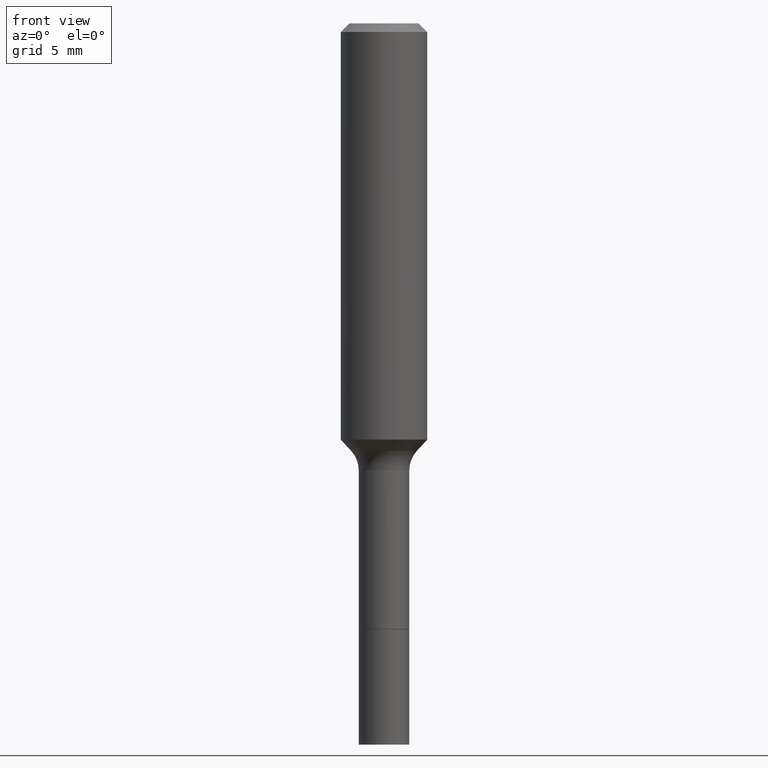
[diagram: clean part render]
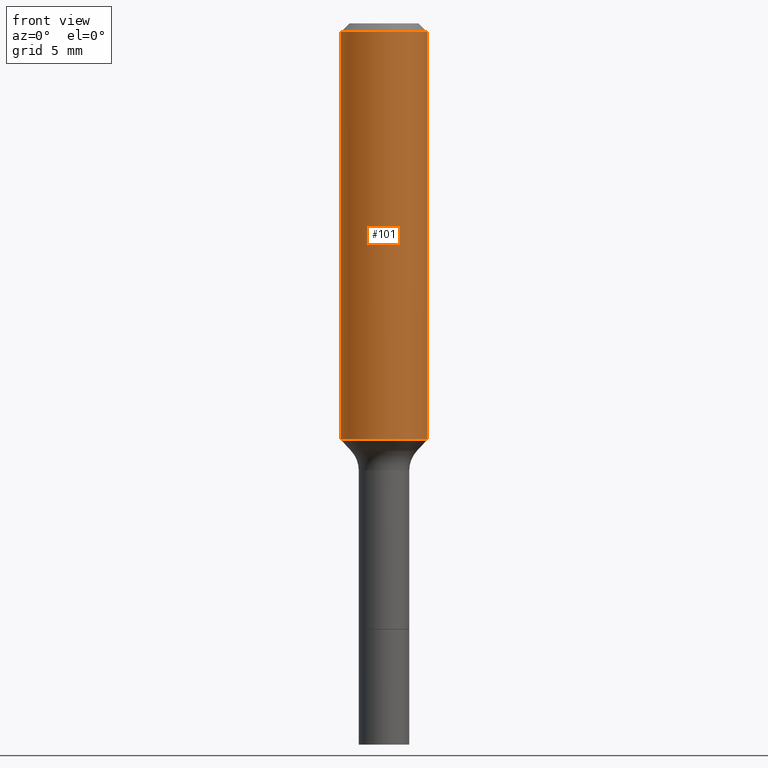
[diagram: same view with one face highlighted and labeled with its STEP entity id]
A machine part, front view. The second image highlights one B-rep face of the part: STEP entity #101.
In plain terms, the highlighted cylindrical surface (partial cylindrical patch) has radius 2.9997 mm, axis along (-0, 0, 1).
Its self-contained STEP definition (entity closure, byte-faithful):
#7 = CARTESIAN_POINT ( 'NONE',  ( 0.1180999999999999966, -9.071566814582237199E-16, -0.02362000000000014435 ) ) ;
#33 = CARTESIAN_POINT ( 'NONE',  ( 0.000000000000000000, 0.000000000000000000, 0.000000000000000000 ) ) ;
#41 = VERTEX_POINT ( 'NONE', #106 ) ;
#68 = DIRECTION ( 'NONE',  ( -2.445468806185136877E-29, 3.491481338843145188E-15, 1.000000000000000000 ) ) ;
#73 = VECTOR ( 'NONE', #514, 39.37007874015748143 ) ;
#87 = DIRECTION ( 'NONE',  ( 1.000000000000000000, -6.982962677686269077E-15, 0.000000000000000000 ) ) ;
#88 = ORIENTED_EDGE ( 'NONE', *, *, #340, .T. ) ;
#93 = DIRECTION ( 'NONE',  ( -2.445468806185136597E-29, 3.491481338843145583E-15, 1.000000000000000000 ) ) ;
#101 = ADVANCED_FACE ( 'NONE', ( #411 ), #160, .T. ) ;
#105 = AXIS2_PLACEMENT_3D ( 'NONE', #135, #93, #87 ) ;
#106 = CARTESIAN_POINT ( 'NONE',  ( -0.1181000000000001354, -3.127963074443632070E-15, -1.136226621417590010 ) ) ;
#112 = AXIS2_PLACEMENT_3D ( 'NONE', #33, #325, #278 ) ;
#130 = VERTEX_POINT ( 'NONE', #481 ) ;
#135 = CARTESIAN_POINT ( 'NONE',  ( 2.778606759433844860E-29, -3.967114045376311056E-15, -1.136226621417590010 ) ) ;
#137 = DIRECTION ( 'NONE',  ( 1.000000000000000000, -6.982962677686266711E-15, 0.000000000000000000 ) ) ;
#160 = CYLINDRICAL_SURFACE ( 'NONE', #112, 0.1181000000000000660 ) ;
#210 = CIRCLE ( 'NONE', #453, 0.1180999999999999966 ) ;
#211 = EDGE_LOOP ( 'NONE', ( #480, #349, #88, #299 ) ) ;
#213 = VERTEX_POINT ( 'NONE', #434 ) ;
#216 = CARTESIAN_POINT ( 'NONE',  ( 0.1181000000000000660, -8.246878922347485584E-16, 5.758764772215003944E-30 ) ) ;
#278 = DIRECTION ( 'NONE',  ( 1.000000000000000000, -6.982962677686266711E-15, 4.876176775795936353E-29 ) ) ;
#296 = CARTESIAN_POINT ( 'NONE',  ( 5.776197320209328408E-31, -8.246878922347560526E-17, -0.02362000000000014435 ) ) ;
#299 = ORIENTED_EDGE ( 'NONE', *, *, #475, .F. ) ;
#311 = VECTOR ( 'NONE', #68, 39.37007874015748143 ) ;
#325 = DIRECTION ( 'NONE',  ( -2.445468806185136597E-29, 3.491481338843145583E-15, 1.000000000000000000 ) ) ;
#340 = EDGE_CURVE ( 'NONE', #213, #439, #423, .T. ) ;
#349 = ORIENTED_EDGE ( 'NONE', *, *, #415, .T. ) ;
#411 = FACE_OUTER_BOUND ( 'NONE', #211, .T. ) ;
#415 = EDGE_CURVE ( 'NONE', #41, #213, #420, .T. ) ;
#420 = CIRCLE ( 'NONE', #105, 0.1181000000000001354 ) ;
#423 = LINE ( 'NONE', #216, #73 ) ;
#425 = LINE ( 'NONE', #498, #311 ) ;
#434 = CARTESIAN_POINT ( 'NONE',  ( 0.1181000000000001354, -4.791801937611060107E-15, -1.136226621417590010 ) ) ;
#439 = VERTEX_POINT ( 'NONE', #7 ) ;
#452 = DIRECTION ( 'NONE',  ( -2.445468806185136597E-29, 3.491481338843145583E-15, 1.000000000000000000 ) ) ;
#453 = AXIS2_PLACEMENT_3D ( 'NONE', #296, #452, #137 ) ;
#475 = EDGE_CURVE ( 'NONE', #130, #439, #210, .T. ) ;
#480 = ORIENTED_EDGE ( 'NONE', *, *, #511, .F. ) ;
#481 = CARTESIAN_POINT ( 'NONE',  ( -0.1180999999999999966, -1.185640446367213876E-15, -0.02362000000000014435 ) ) ;
#498 = CARTESIAN_POINT ( 'NONE',  ( -0.1181000000000000660, 8.391509709326787887E-16, -5.809262341591047287E-30 ) ) ;
#511 = EDGE_CURVE ( 'NONE', #41, #130, #425, .T. ) ;
#514 = DIRECTION ( 'NONE',  ( -2.445468806185136877E-29, 3.491481338843145188E-15, 1.000000000000000000 ) ) ;